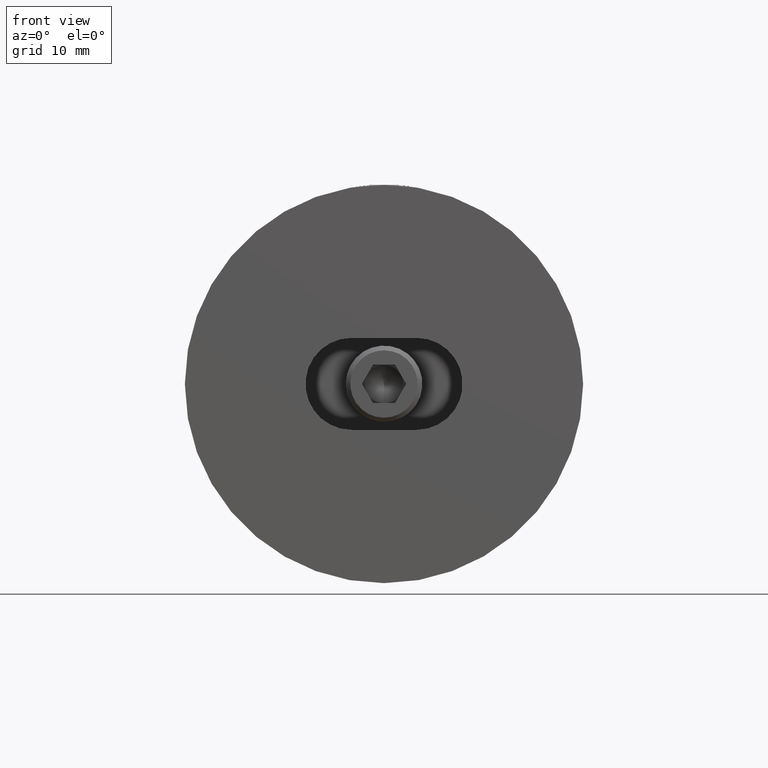
[diagram: clean part render]
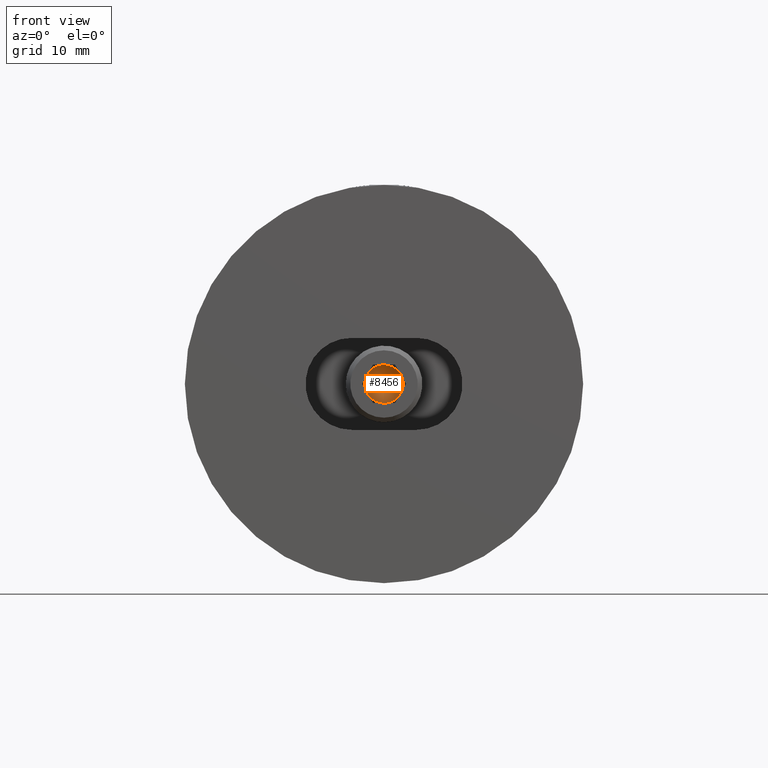
[diagram: same view with one face highlighted and labeled with its STEP entity id]
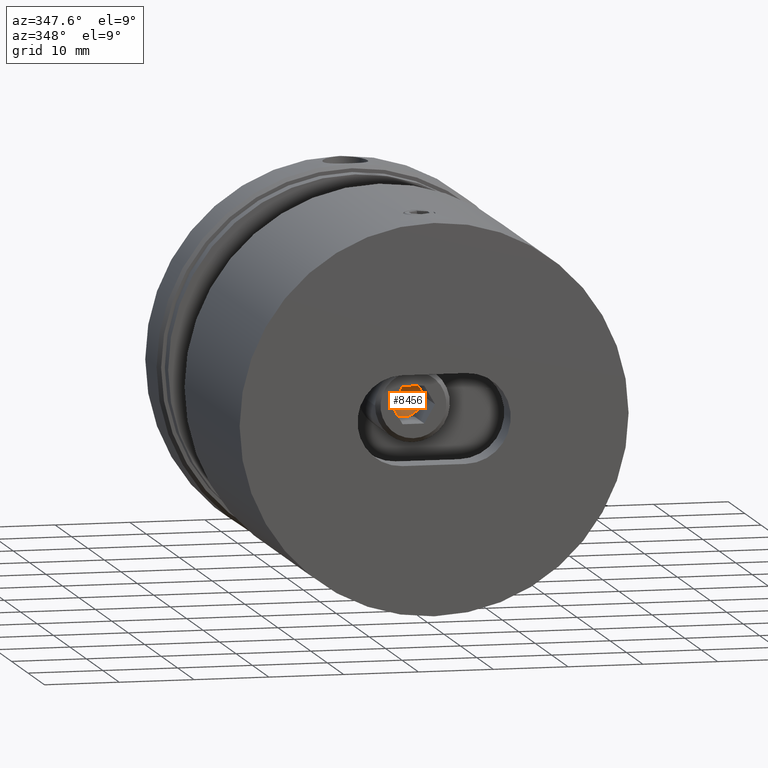
[diagram: same view with one face highlighted and labeled with its STEP entity id]
A machine part, front view. The second image highlights one B-rep face of the part: STEP entity #8456.
A second angle (auxiliary view) of the same face is appended — the face is thin or edge-on in the first view.
In plain terms, the highlighted conical surface has half-angle 59 deg.
Its self-contained STEP definition (entity closure, byte-faithful):
#514 = EDGE_CURVE ( 'NONE', #19829, #8304, #10135, .T. ) ;
#561 = DIRECTION ( 'NONE',  ( 1.000000000000000000, -0.000000000000000000, -1.718218320010719189E-16 ) ) ;
#1710 = DIRECTION ( 'NONE',  ( -1.000000000000000000, -0.000000000000000000, 0.000000000000000000 ) ) ;
#1929 = CARTESIAN_POINT ( 'NONE',  ( 39.00000000000000000, 0.000000000000000000, -3.265203223180752743E-15 ) ) ;
#2332 = AXIS2_PLACEMENT_3D ( 'NONE', #16942, #561, #20564 ) ;
#2448 = EDGE_LOOP ( 'NONE', ( #20072, #11558, #14376, #10738, #5013, #3011 ) ) ;
#2592 = CARTESIAN_POINT ( 'NONE',  ( 39.00000000000000000, -2.165063509461092828, 1.249999999999994671 ) ) ;
#2767 = AXIS2_PLACEMENT_3D ( 'NONE', #6666, #19243, #11923 ) ;
#3011 = ORIENTED_EDGE ( 'NONE', *, *, #15481, .F. ) ;
#3546 = DIRECTION ( 'NONE',  ( 0.000000000000000000, 0.000000000000000000, 1.000000000000000000 ) ) ;
#3672 = CARTESIAN_POINT ( 'NONE',  ( 39.00000000000000000, 3.755786496842901522E-16, 2.500000000000000000 ) ) ;
#5013 = ORIENTED_EDGE ( 'NONE', *, *, #7532, .F. ) ;
#5178 = CARTESIAN_POINT ( 'NONE',  ( 39.00000000000000000, 2.165063509461093272, 1.249999999999994449 ) ) ;
#5472 = EDGE_CURVE ( 'NONE', #7337, #23326, #14512, .T. ) ;
#5474 = CONICAL_SURFACE ( 'NONE', #2332, 2.499999999999996003, 1.029744258676649871 ) ;
#6666 = CARTESIAN_POINT ( 'NONE',  ( 39.00000000000000000, 0.000000000000000000, -3.265203223180752743E-15 ) ) ;
#7337 = VERTEX_POINT ( 'NONE', #5178 ) ;
#7532 = EDGE_CURVE ( 'NONE', #20641, #19829, #10528, .T. ) ;
#8304 = VERTEX_POINT ( 'NONE', #3672 ) ;
#8456 = ADVANCED_FACE ( 'NONE', ( #19848 ), #5474, .F. ) ;
#8475 = CIRCLE ( 'NONE', #17486, 2.499999999999996003 ) ;
#8627 = CARTESIAN_POINT ( 'NONE',  ( 39.00000000000000000, 0.000000000000000000, -3.265203223180752743E-15 ) ) ;
#9027 = CARTESIAN_POINT ( 'NONE',  ( 39.00000000000000000, -2.165063509461094160, -1.250000000000000666 ) ) ;
#9578 = AXIS2_PLACEMENT_3D ( 'NONE', #16656, #20287, #13253 ) ;
#10135 = CIRCLE ( 'NONE', #2767, 2.499999999999996003 ) ;
#10134 = DIRECTION ( 'NONE',  ( 0.000000000000000000, 0.000000000000000000, 1.000000000000000000 ) ) ;
#10302 = EDGE_CURVE ( 'NONE', #19234, #23326, #19817, .T. ) ;
#10528 = CIRCLE ( 'NONE', #9578, 2.499999999999996003 ) ;
#10738 = ORIENTED_EDGE ( 'NONE', *, *, #514, .F. ) ;
#11558 = ORIENTED_EDGE ( 'NONE', *, *, #5472, .F. ) ;
#11923 = DIRECTION ( 'NONE',  ( 0.000000000000000000, 0.000000000000000000, 1.000000000000000000 ) ) ;
#12234 = DIRECTION ( 'NONE',  ( 0.000000000000000000, 0.000000000000000000, 1.000000000000000000 ) ) ;
#13253 = DIRECTION ( 'NONE',  ( 0.000000000000000000, 0.000000000000000000, 1.000000000000000000 ) ) ;
#14008 = EDGE_CURVE ( 'NONE', #8304, #7337, #8475, .T. ) ;
#14376 = ORIENTED_EDGE ( 'NONE', *, *, #14008, .F. ) ;
#14512 = CIRCLE ( 'NONE', #16517, 2.499999999999996003 ) ;
#15323 = DIRECTION ( 'NONE',  ( -1.000000000000000000, -0.000000000000000000, 0.000000000000000000 ) ) ;
#15468 = CARTESIAN_POINT ( 'NONE',  ( 39.00000000000000000, 0.000000000000000000, -3.265203223180752743E-15 ) ) ;
#15481 = EDGE_CURVE ( 'NONE', #19234, #20641, #20243, .T. ) ;
#15684 = CARTESIAN_POINT ( 'NONE',  ( 39.00000000000000000, 0.000000000000000000, -3.980102097228898626E-15 ) ) ;
#16360 = CARTESIAN_POINT ( 'NONE',  ( 39.00000000000000000, 2.165063509461093716, -1.250000000000001776 ) ) ;
#16517 = AXIS2_PLACEMENT_3D ( 'NONE', #15468, #15323, #10134 ) ;
#16656 = CARTESIAN_POINT ( 'NONE',  ( 39.00000000000000000, 0.000000000000000000, -3.265203223180752743E-15 ) ) ;
#16942 = CARTESIAN_POINT ( 'NONE',  ( 39.00000000000000000, 0.000000000000000000, -3.980102097228898626E-15 ) ) ;
#17190 = DIRECTION ( 'NONE',  ( 1.000000000000000000, -0.000000000000000000, -1.718218320010719189E-16 ) ) ;
#17486 = AXIS2_PLACEMENT_3D ( 'NONE', #1929, #1710, #3546 ) ;
#19000 = AXIS2_PLACEMENT_3D ( 'NONE', #8627, #23012, #12234 ) ;
#19103 = AXIS2_PLACEMENT_3D ( 'NONE', #15684, #17190, #22773 ) ;
#19234 = VERTEX_POINT ( 'NONE', #19927 ) ;
#19243 = DIRECTION ( 'NONE',  ( -1.000000000000000000, -0.000000000000000000, 0.000000000000000000 ) ) ;
#19817 = CIRCLE ( 'NONE', #19103, 2.499999999999996003 ) ;
#19829 = VERTEX_POINT ( 'NONE', #2592 ) ;
#19848 = FACE_OUTER_BOUND ( 'NONE', #2448, .T. ) ;
#19927 = CARTESIAN_POINT ( 'NONE',  ( 39.00000000000000000, 0.000000000000000000, -2.500000000000000000 ) ) ;
#20072 = ORIENTED_EDGE ( 'NONE', *, *, #10302, .T. ) ;
#20243 = CIRCLE ( 'NONE', #19000, 2.499999999999996003 ) ;
#20287 = DIRECTION ( 'NONE',  ( -1.000000000000000000, -0.000000000000000000, 0.000000000000000000 ) ) ;
#20564 = DIRECTION ( 'NONE',  ( 0.000000000000000000, 0.000000000000000000, -1.000000000000000000 ) ) ;
#20641 = VERTEX_POINT ( 'NONE', #9027 ) ;
#22773 = DIRECTION ( 'NONE',  ( 0.000000000000000000, 0.000000000000000000, -1.000000000000000000 ) ) ;
#23012 = DIRECTION ( 'NONE',  ( -1.000000000000000000, -0.000000000000000000, 0.000000000000000000 ) ) ;
#23326 = VERTEX_POINT ( 'NONE', #16360 ) ;